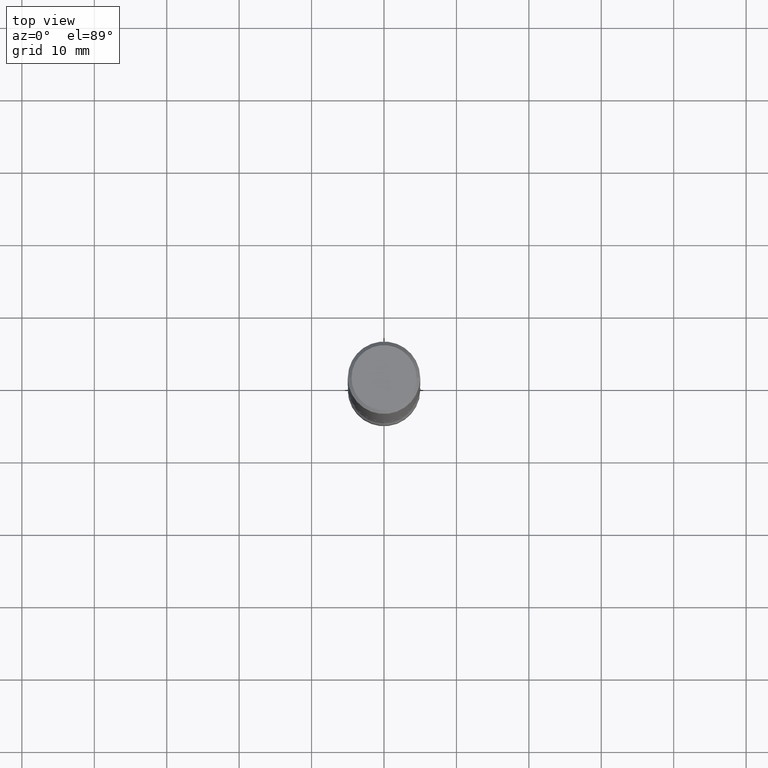
[diagram: clean part render]
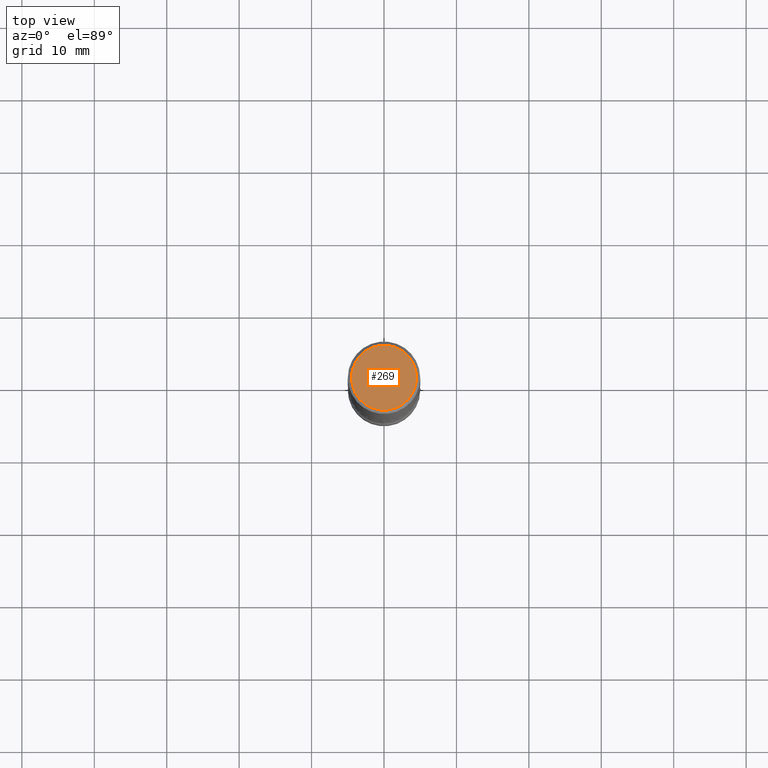
[diagram: same view with one face highlighted and labeled with its STEP entity id]
A machine part, top view. The second image highlights one B-rep face of the part: STEP entity #269.
In plain terms, the highlighted planar face has unit normal (0, -0, -1).
Its self-contained STEP definition (entity closure, byte-faithful):
#9 = DIRECTION ( 'NONE',  ( -2.445468806185136597E-29, 3.491481338843145583E-15, 1.000000000000000000 ) ) ;
#31 = EDGE_CURVE ( 'NONE', #71, #211, #277, .T. ) ;
#37 = ORIENTED_EDGE ( 'NONE', *, *, #337, .T. ) ;
#49 = DIRECTION ( 'NONE',  ( 1.000000000000000000, -6.982962677686266711E-15, 4.875932113059882493E-29 ) ) ;
#71 = VERTEX_POINT ( 'NONE', #177 ) ;
#104 = DIRECTION ( 'NONE',  ( -1.000000000000000000, 6.982962677686265922E-15, -4.876176775795935793E-29 ) ) ;
#128 = AXIS2_PLACEMENT_3D ( 'NONE', #448, #148, #104 ) ;
#148 = DIRECTION ( 'NONE',  ( 2.438088387897960049E-29, -3.491481338843145188E-15, -1.000000000000000000 ) ) ;
#151 = FACE_OUTER_BOUND ( 'NONE', #539, .T. ) ;
#167 = DIRECTION ( 'NONE',  ( -2.445468806185136597E-29, 3.491481338843145583E-15, 1.000000000000000000 ) ) ;
#177 = CARTESIAN_POINT ( 'NONE',  ( 0.1768499999999998407, -1.316798864272041352E-15, 4.268512490109333727E-18 ) ) ;
#183 = DIRECTION ( 'NONE',  ( 1.000000000000000000, -6.982962677686266711E-15, 4.875932113059882493E-29 ) ) ;
#194 = CARTESIAN_POINT ( 'NONE',  ( -1.043851414335219820E-46, 1.490343170380447200E-32, 4.268512490100411279E-18 ) ) ;
#211 = VERTEX_POINT ( 'NONE', #229 ) ;
#229 = CARTESIAN_POINT ( 'NONE',  ( -0.1768499999999998407, 1.269851762937246464E-15, 4.268512490091652920E-18 ) ) ;
#269 = ADVANCED_FACE ( 'NONE', ( #151 ), #442, .F. ) ;
#277 = CIRCLE ( 'NONE', #345, 0.1768499999999998407 ) ;
#278 = AXIS2_PLACEMENT_3D ( 'NONE', #194, #9, #183 ) ;
#337 = EDGE_CURVE ( 'NONE', #211, #71, #473, .T. ) ;
#345 = AXIS2_PLACEMENT_3D ( 'NONE', #369, #167, #49 ) ;
#369 = CARTESIAN_POINT ( 'NONE',  ( -1.043851414335219820E-46, 1.490343170380447200E-32, 4.268512490100411279E-18 ) ) ;
#442 = PLANE ( 'NONE',  #128 ) ;
#448 = CARTESIAN_POINT ( 'NONE',  ( 1.234936949548815012E-15, 0.1768499999999998407, -6.153342185293596592E-16 ) ) ;
#473 = CIRCLE ( 'NONE', #278, 0.1768499999999998407 ) ;
#494 = ORIENTED_EDGE ( 'NONE', *, *, #31, .T. ) ;
#539 = EDGE_LOOP ( 'NONE', ( #37, #494 ) ) ;